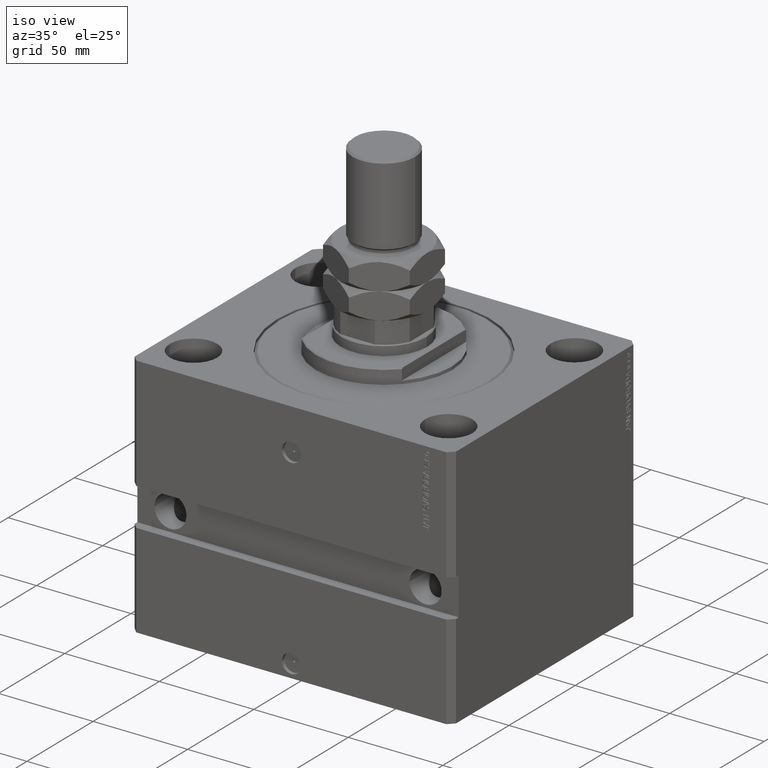
[diagram: clean part render]
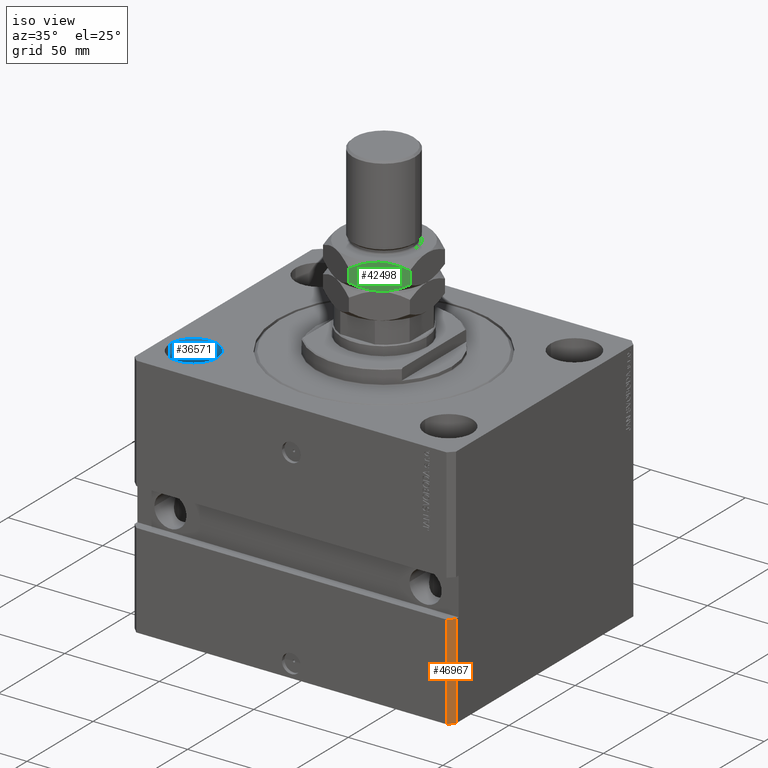
[diagram: same view with three faces highlighted in distinct colors, each labeled with its STEP entity id]
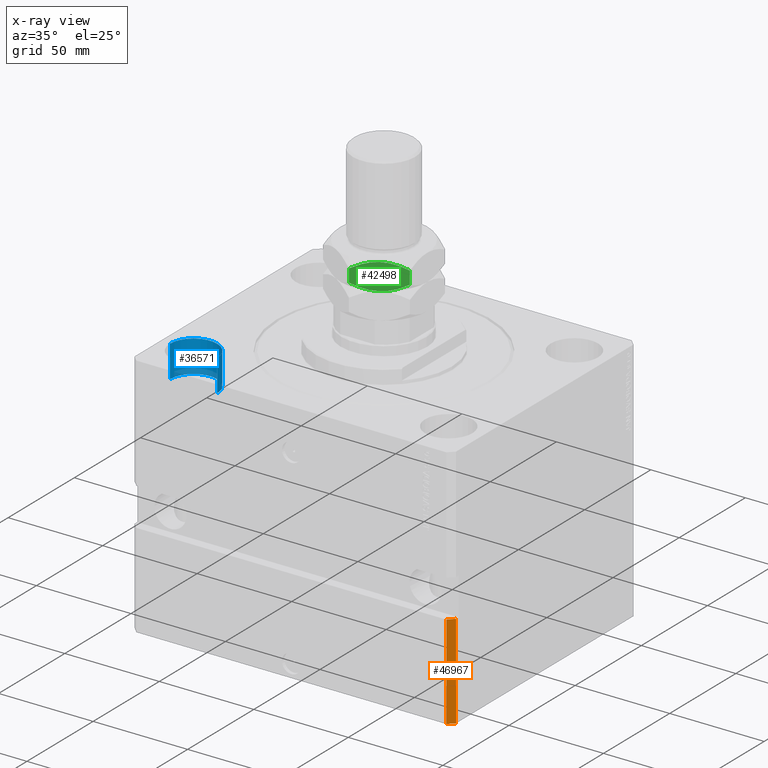
[diagram: x-ray of the same camera — body ghosted, the three highlighted faces saturated]
A machine part, iso view with three faces highlighted in distinct colors.
The next image is the same camera in x-ray (body ghosted, the three faces saturated) — at least one of them is partly hidden behind the body in this view.
Their STEP definitions:

[orange] entity #46967 — the highlighted planar face has unit normal (0.7071, -0.7071, 0).
#536 = ORIENTED_EDGE ( 'NONE', *, *, #32815, .F. ) ;
#2809 = LINE ( 'NONE', #28449, #19411 ) ;
#4522 = VERTEX_POINT ( 'NONE', #7290 ) ;
#5589 = LINE ( 'NONE', #31228, #29243 ) ;
#7290 = CARTESIAN_POINT ( 'NONE',  ( 85.00000000000001421, -66.99999999999998579, -80.00000000000001421 ) ) ;
#8044 = ORIENTED_EDGE ( 'NONE', *, *, #28532, .T. ) ;
#8510 = EDGE_LOOP ( 'NONE', ( #9921, #536, #27963, #8044 ) ) ;
#9921 = ORIENTED_EDGE ( 'NONE', *, *, #32874, .F. ) ;
#10393 = VERTEX_POINT ( 'NONE', #38588 ) ;
#10424 = CARTESIAN_POINT ( 'NONE',  ( 85.00000000000001421, -66.99999999999998579, -130.0000000000000000 ) ) ;
#12153 = DIRECTION ( 'NONE',  ( 0.7071067811865491270, -0.7071067811865459074, 0.000000000000000000 ) ) ;
#17192 = EDGE_CURVE ( 'NONE', #41017, #46832, #5589, .T. ) ;
#17438 = DIRECTION ( 'NONE',  ( 0.7071067811865459074, 0.7071067811865491270, 0.000000000000000000 ) ) ;
#19411 = VECTOR ( 'NONE', #17438, 1000.000000000000000 ) ;
#21381 = CARTESIAN_POINT ( 'NONE',  ( 82.00000000000001421, -70.00000000000000000, -130.0000000000000000 ) ) ;
#24320 = AXIS2_PLACEMENT_3D ( 'NONE', #41127, #12153, #40651 ) ;
#24857 = DIRECTION ( 'NONE',  ( 0.000000000000000000, 0.000000000000000000, 1.000000000000000000 ) ) ;
#24883 = CARTESIAN_POINT ( 'NONE',  ( 85.00000000000001421, -66.99999999999998579, -130.0000000000000000 ) ) ;
#25046 = DIRECTION ( 'NONE',  ( 0.000000000000000000, 0.000000000000000000, 1.000000000000000000 ) ) ;
#27819 = VECTOR ( 'NONE', #24857, 1000.000000000000000 ) ;
#27963 = ORIENTED_EDGE ( 'NONE', *, *, #17192, .T. ) ;
#28449 = CARTESIAN_POINT ( 'NONE',  ( 82.00000000000001421, -70.00000000000000000, -80.00000000000001421 ) ) ;
#28532 = EDGE_CURVE ( 'NONE', #46832, #4522, #46838, .T. ) ;
#28915 = LINE ( 'NONE', #32037, #27819 ) ;
#29243 = VECTOR ( 'NONE', #45827, 1000.000000000000000 ) ;
#31228 = CARTESIAN_POINT ( 'NONE',  ( 82.00000000000001421, -70.00000000000000000, -130.0000000000000000 ) ) ;
#31544 = VECTOR ( 'NONE', #25046, 1000.000000000000000 ) ;
#32037 = CARTESIAN_POINT ( 'NONE',  ( 82.00000000000001421, -70.00000000000000000, -130.0000000000000000 ) ) ;
#32815 = EDGE_CURVE ( 'NONE', #41017, #10393, #28915, .T. ) ;
#32874 = EDGE_CURVE ( 'NONE', #10393, #4522, #2809, .T. ) ;
#33704 = FACE_OUTER_BOUND ( 'NONE', #8510, .T. ) ;
#38588 = CARTESIAN_POINT ( 'NONE',  ( 82.00000000000001421, -69.99999999999998579, -80.00000000000001421 ) ) ;
#40651 = DIRECTION ( 'NONE',  ( 0.7071067811865459074, 0.7071067811865491270, 0.000000000000000000 ) ) ;
#41017 = VERTEX_POINT ( 'NONE', #21381 ) ;
#41127 = CARTESIAN_POINT ( 'NONE',  ( 82.00000000000001421, -70.00000000000000000, -130.0000000000000000 ) ) ;
#44964 = PLANE ( 'NONE',  #24320 ) ;
#45827 = DIRECTION ( 'NONE',  ( 0.7071067811865459074, 0.7071067811865491270, 0.000000000000000000 ) ) ;
#46832 = VERTEX_POINT ( 'NONE', #24883 ) ;
#46838 = LINE ( 'NONE', #10424, #31544 ) ;
#46967 = ADVANCED_FACE ( 'NONE', ( #33704 ), #44964, .T. ) ;

[blue] entity #36571 — the highlighted cylindrical surface (edge-blend (fillet) strip) has radius 12.5 mm, axis along (0, 0, 1).
#1251 = VERTEX_POINT ( 'NONE', #17324 ) ;
#1873 = VERTEX_POINT ( 'NONE', #21745 ) ;
#2598 = CARTESIAN_POINT ( 'NONE',  ( -67.50000000000000000, -47.50000000000000000, 0.000000000000000000 ) ) ;
#4026 = EDGE_LOOP ( 'NONE', ( #34848, #25272, #43698, #11450 ) ) ;
#4835 = EDGE_CURVE ( 'NONE', #1251, #41098, #28191, .T. ) ;
#4892 = EDGE_CURVE ( 'NONE', #41098, #36389, #22205, .T. ) ;
#7119 = CIRCLE ( 'NONE', #13254, 12.49999999999999645 ) ;
#8400 = CARTESIAN_POINT ( 'NONE',  ( -80.00000000000000000, -47.50000000000000000, -17.00000000000000000 ) ) ;
#10143 = CARTESIAN_POINT ( 'NONE',  ( -80.00000000000000000, -47.50000000000000000, 0.000000000000000000 ) ) ;
#10232 = AXIS2_PLACEMENT_3D ( 'NONE', #12503, #27349, #26879 ) ;
#11450 = ORIENTED_EDGE ( 'NONE', *, *, #34959, .T. ) ;
#12503 = CARTESIAN_POINT ( 'NONE',  ( -67.50000000000000000, -47.50000000000000000, -17.00000000000000000 ) ) ;
#13254 = AXIS2_PLACEMENT_3D ( 'NONE', #2598, #24876, #43305 ) ;
#17324 = CARTESIAN_POINT ( 'NONE',  ( -55.00000000000000711, -47.50000000000000000, -17.00000000000000000 ) ) ;
#21745 = CARTESIAN_POINT ( 'NONE',  ( -55.00000000000000711, -47.50000000000000000, 0.000000000000000000 ) ) ;
#22205 = LINE ( 'NONE', #25802, #35085 ) ;
#23291 = CYLINDRICAL_SURFACE ( 'NONE', #10232, 12.49999999999999645 ) ;
#24060 = VECTOR ( 'NONE', #34954, 1000.000000000000000 ) ;
#24876 = DIRECTION ( 'NONE',  ( 0.000000000000000000, 0.000000000000000000, 1.000000000000000000 ) ) ;
#25272 = ORIENTED_EDGE ( 'NONE', *, *, #4835, .F. ) ;
#25802 = CARTESIAN_POINT ( 'NONE',  ( -80.00000000000000000, -47.50000000000000000, -17.00000000000000000 ) ) ;
#26879 = DIRECTION ( 'NONE',  ( 1.000000000000000000, 0.000000000000000000, 0.000000000000000000 ) ) ;
#27095 = DIRECTION ( 'NONE',  ( 1.000000000000000000, 0.000000000000000000, 0.000000000000000000 ) ) ;
#27349 = DIRECTION ( 'NONE',  ( -0.000000000000000000, -0.000000000000000000, 1.000000000000000000 ) ) ;
#28191 = CIRCLE ( 'NONE', #46550, 12.49999999999999645 ) ;
#30691 = CARTESIAN_POINT ( 'NONE',  ( -67.50000000000000000, -47.50000000000000000, -17.00000000000000000 ) ) ;
#30930 = DIRECTION ( 'NONE',  ( 0.000000000000000000, 0.000000000000000000, 1.000000000000000000 ) ) ;
#34848 = ORIENTED_EDGE ( 'NONE', *, *, #4892, .F. ) ;
#34954 = DIRECTION ( 'NONE',  ( -0.000000000000000000, -0.000000000000000000, 1.000000000000000000 ) ) ;
#34959 = EDGE_CURVE ( 'NONE', #1873, #36389, #7119, .T. ) ;
#35085 = VECTOR ( 'NONE', #46240, 1000.000000000000000 ) ;
#36389 = VERTEX_POINT ( 'NONE', #10143 ) ;
#36571 = ADVANCED_FACE ( 'NONE', ( #41484 ), #23291, .F. ) ;
#37710 = EDGE_CURVE ( 'NONE', #1251, #1873, #41904, .T. ) ;
#38547 = CARTESIAN_POINT ( 'NONE',  ( -55.00000000000000711, -47.50000000000000000, -17.00000000000000000 ) ) ;
#41098 = VERTEX_POINT ( 'NONE', #8400 ) ;
#41484 = FACE_OUTER_BOUND ( 'NONE', #4026, .T. ) ;
#41904 = LINE ( 'NONE', #38547, #24060 ) ;
#43305 = DIRECTION ( 'NONE',  ( 1.000000000000000000, 0.000000000000000000, 0.000000000000000000 ) ) ;
#43698 = ORIENTED_EDGE ( 'NONE', *, *, #37710, .T. ) ;
#46240 = DIRECTION ( 'NONE',  ( -0.000000000000000000, -0.000000000000000000, 1.000000000000000000 ) ) ;
#46550 = AXIS2_PLACEMENT_3D ( 'NONE', #30691, #30930, #27095 ) ;

[green] entity #42498 — the highlighted planar face has unit normal (-0.5, 0.866, 0).
#16 = CARTESIAN_POINT ( 'NONE',  ( 18.37513248879265859, -15.94922469392329845, 26.69215624893394789 ) ) ;
#658 = CARTESIAN_POINT ( 'NONE',  ( 23.00000000000000000, -13.27905619136138782, 17.55811238272277564 ) ) ;
#965 = VERTEX_POINT ( 'NONE', #11112 ) ;
#1131 = ORIENTED_EDGE ( 'NONE', *, *, #10296, .T. ) ;
#2305 = CARTESIAN_POINT ( 'NONE',  ( 9.499688913091178577, -21.07346443153189242, 14.00000000000001243 ) ) ;
#2662 = CARTESIAN_POINT ( 'NONE',  ( 11.50000000000000533, -19.91858428704207995, 28.00000000000000000 ) ) ;
#3827 = CARTESIAN_POINT ( 'NONE',  ( 22.09936078620807010, -13.79904048388689297, 24.96187190980275616 ) ) ;
#4061 = CARTESIAN_POINT ( 'NONE',  ( 11.50000000000000533, -19.91858428704207995, 28.00000000000000000 ) ) ;
#5591 = CARTESIAN_POINT ( 'NONE',  ( 11.50000000000000533, -19.91858428704207995, 28.00000000000000000 ) ) ;
#6022 = CARTESIAN_POINT ( 'NONE',  ( 13.52432111410264426, -18.74984194688869721, 14.11109877778790711 ) ) ;
#6354 = CARTESIAN_POINT ( 'NONE',  ( 3.676134192524337152, -24.43569531709167819, 15.69106848873859761 ) ) ;
#6844 = B_SPLINE_CURVE_WITH_KNOTS ( 'NONE', 3,
 ( #41955, #20169, #20398, #16813, #13212, #27824, #38823, #32127, #13699, #2662 ),
 .UNSPECIFIED., .F., .F.,
 ( 4, 2, 2, 2, 4 ),
 ( 2.544306848906980008E-07, 0.006882727124393995914, 0.01032396347124855084, 0.01204458164467583220, 0.01376519981810311356 ),
 .UNSPECIFIED. ) ;
#7272 = EDGE_CURVE ( 'NONE', #965, #14093, #28965, .T. ) ;
#8252 = CARTESIAN_POINT ( 'NONE',  ( 23.00000000000000000, -13.27905619136138959, 24.44188761727722792 ) ) ;
#9501 = DIRECTION ( 'NONE',  ( -0.8660254037844383745, -0.5000000000000003331, 0.000000000000000000 ) ) ;
#10296 = EDGE_CURVE ( 'NONE', #24319, #14093, #30939, .T. ) ;
#10425 = CARTESIAN_POINT ( 'NONE',  ( 1.709722276742338234E-15, -26.55811238272278985, 17.55811238272278274 ) ) ;
#10558 = CARTESIAN_POINT ( 'NONE',  ( 21.18561130058603581, -14.32659399538265355, 25.44392212070775727 ) ) ;
#11112 = CARTESIAN_POINT ( 'NONE',  ( 11.49999999999998934, -19.91858428704209061, 14.00000000000000000 ) ) ;
#13212 = CARTESIAN_POINT ( 'NONE',  ( 7.485235315951460855, -22.23650975811052533, 27.56483616389683888 ) ) ;
#13324 = CARTESIAN_POINT ( 'NONE',  ( 0.9006392137919316809, -26.03812809019729357, 17.03812809019724028 ) ) ;
#13347 = DIRECTION ( 'NONE',  ( -0.5000000000000004441, 0.8660254037844384856, 0.000000000000000000 ) ) ;
#13467 = CARTESIAN_POINT ( 'NONE',  ( 15.51476468404853826, -17.60065881597365944, 14.43516383610315756 ) ) ;
#13699 = CARTESIAN_POINT ( 'NONE',  ( 10.99639501427890309, -20.20934076111341327, 28.00000000000000355 ) ) ;
#13711 = CARTESIAN_POINT ( 'NONE',  ( 12.51003418050900073, -19.33544078103450303, 14.02214754275534681 ) ) ;
#14093 = VERTEX_POINT ( 'NONE', #36939 ) ;
#16697 = CARTESIAN_POINT ( 'NONE',  ( 3.419413258936889517E-15, -26.55811238272278985, 28.00000000000000000 ) ) ;
#16813 = CARTESIAN_POINT ( 'NONE',  ( 6.513252209336793719, -22.79768446636226642, 27.31372419864524659 ) ) ;
#17766 = CARTESIAN_POINT ( 'NONE',  ( 21.19663298550257480, -14.32023062262916824, 16.51693795145499877 ) ) ;
#19939 = B_SPLINE_CURVE_WITH_KNOTS ( 'NONE', 3,
 ( #4061, #21586, #46975, #16, #29698, #10558, #3827, #33055 ),
 .UNSPECIFIED., .F., .F.,
 ( 4, 2, 2, 4 ),
 ( 0.01376519981810311356, 0.02059946815584629345, 0.02401660232471788253, 0.02743373649358946814 ),
 .UNSPECIFIED. ) ;
#20169 = CARTESIAN_POINT ( 'NONE',  ( 1.803367014497427645, -25.51693795145501298, 25.48306204854499768 ) ) ;
#20398 = CARTESIAN_POINT ( 'NONE',  ( 3.647547518302292957, -24.45219984114902090, 26.36778857186889979 ) ) ;
#20746 = CARTESIAN_POINT ( 'NONE',  ( 11.49999999999998934, -19.91858428704209061, 14.00000000000000000 ) ) ;
#21357 = CARTESIAN_POINT ( 'NONE',  ( 12.00360498572110401, -19.62782781297077861, 14.00000000000000533 ) ) ;
#21586 = CARTESIAN_POINT ( 'NONE',  ( 13.50031108690882675, -18.76370414255229591, 28.00000000000000000 ) ) ;
#24319 = VERTEX_POINT ( 'NONE', #47289 ) ;
#25047 = CARTESIAN_POINT ( 'NONE',  ( 7.533391302902209041, -22.20870688608141919, 14.35317254909358908 ) ) ;
#25260 = ORIENTED_EDGE ( 'NONE', *, *, #45445, .F. ) ;
#26712 = B_SPLINE_CURVE_WITH_KNOTS ( 'NONE', 3,
 ( #42443, #17766, #28545, #32370, #13467, #39541, #6022, #13711, #21357, #35966 ),
 .UNSPECIFIED., .F., .F.,
 ( 4, 2, 2, 2, 4 ),
 ( 2.544306848934472580E-07, 0.006882727124394008057, 0.01032396347124856124, 0.01204458164467583740, 0.01376519981810311356 ),
 .UNSPECIFIED. ) ;
#27174 = DIRECTION ( 'NONE',  ( -0.000000000000000000, -0.000000000000000000, -1.000000000000000000 ) ) ;
#27338 = DIRECTION ( 'NONE',  ( -0.000000000000000000, -0.000000000000000000, -1.000000000000000000 ) ) ;
#27824 = CARTESIAN_POINT ( 'NONE',  ( 8.974191784962727070, -21.37686033991523615, 27.82274339568303390 ) ) ;
#28545 = CARTESIAN_POINT ( 'NONE',  ( 19.35245248169770349, -15.38496873293516742, 15.63221142813110376 ) ) ;
#28965 = B_SPLINE_CURVE_WITH_KNOTS ( 'NONE', 3,
 ( #20746, #2305, #25047, #42774, #6354, #42536, #13324, #10425 ),
 .UNSPECIFIED., .F., .F.,
 ( 4, 2, 2, 4 ),
 ( 0.01376519981810311356, 0.02059946815584628999, 0.02401660232471788253, 0.02743373649358947161 ),
 .UNSPECIFIED. ) ;
#29698 = CARTESIAN_POINT ( 'NONE',  ( 19.32386580747566285, -15.40147325699249770, 26.30893151126140594 ) ) ;
#30897 = VECTOR ( 'NONE', #27174, 1000.000000000000000 ) ;
#30939 = LINE ( 'NONE', #45533, #39733 ) ;
#30970 = VERTEX_POINT ( 'NONE', #5591 ) ;
#31060 = AXIS2_PLACEMENT_3D ( 'NONE', #16697, #13347, #9501 ) ;
#31241 = CARTESIAN_POINT ( 'NONE',  ( 23.00000000000000000, -13.27905619136138959, 28.00000000000000000 ) ) ;
#31254 = ORIENTED_EDGE ( 'NONE', *, *, #36316, .F. ) ;
#32127 = CARTESIAN_POINT ( 'NONE',  ( 10.48996581949100104, -20.50172779304968884, 27.97785245724466563 ) ) ;
#32370 = CARTESIAN_POINT ( 'NONE',  ( 16.48674779066320184, -17.03948410772191124, 14.68627580135475164 ) ) ;
#33055 = CARTESIAN_POINT ( 'NONE',  ( 23.00000000000000000, -13.27905619136138959, 24.44188761727722792 ) ) ;
#33539 = EDGE_LOOP ( 'NONE', ( #42793, #31254, #25260, #33902, #1131, #40074 ) ) ;
#33902 = ORIENTED_EDGE ( 'NONE', *, *, #35502, .F. ) ;
#34891 = PLANE ( 'NONE',  #31060 ) ;
#35502 = EDGE_CURVE ( 'NONE', #24319, #30970, #6844, .T. ) ;
#35966 = CARTESIAN_POINT ( 'NONE',  ( 11.49999999999998934, -19.91858428704209061, 14.00000000000000000 ) ) ;
#36316 = EDGE_CURVE ( 'NONE', #37402, #45971, #45136, .T. ) ;
#36939 = CARTESIAN_POINT ( 'NONE',  ( 1.709722276742338234E-15, -26.55811238272278985, 17.55811238272278274 ) ) ;
#37402 = VERTEX_POINT ( 'NONE', #8252 ) ;
#38823 = CARTESIAN_POINT ( 'NONE',  ( 9.475678885897357517, -21.08732662719549467, 27.88890122221209467 ) ) ;
#39541 = CARTESIAN_POINT ( 'NONE',  ( 14.02580821503727471, -18.46030823416895217, 14.17725660431697676 ) ) ;
#39733 = VECTOR ( 'NONE', #27338, 1000.000000000000000 ) ;
#40074 = ORIENTED_EDGE ( 'NONE', *, *, #7272, .F. ) ;
#41955 = CARTESIAN_POINT ( 'NONE',  ( -1.934533906329143444E-16, -26.55811238272279340, 24.44188761727721726 ) ) ;
#42443 = CARTESIAN_POINT ( 'NONE',  ( 23.00000000000000000, -13.27905619136138782, 17.55811238272277564 ) ) ;
#42498 = ADVANCED_FACE ( 'NONE', ( #46148 ), #34891, .F. ) ;
#42536 = CARTESIAN_POINT ( 'NONE',  ( 1.814388699413966410, -25.51057457870152589, 16.55607787929225339 ) ) ;
#42774 = CARTESIAN_POINT ( 'NONE',  ( 4.624867511207329862, -23.88794388016088632, 15.30784375106604855 ) ) ;
#42793 = ORIENTED_EDGE ( 'NONE', *, *, #46192, .F. ) ;
#45136 = LINE ( 'NONE', #31241, #30897 ) ;
#45445 = EDGE_CURVE ( 'NONE', #30970, #37402, #19939, .T. ) ;
#45533 = CARTESIAN_POINT ( 'NONE',  ( 3.419413258936889517E-15, -26.55811238272278985, 28.00000000000000000 ) ) ;
#45971 = VERTEX_POINT ( 'NONE', #658 ) ;
#46148 = FACE_OUTER_BOUND ( 'NONE', #33539, .T. ) ;
#46192 = EDGE_CURVE ( 'NONE', #45971, #965, #26712, .T. ) ;
#46975 = CARTESIAN_POINT ( 'NONE',  ( 15.46660869709778119, -17.62846168800276558, 27.64682745090641447 ) ) ;
#47289 = CARTESIAN_POINT ( 'NONE',  ( -1.934533906329143444E-16, -26.55811238272279340, 24.44188761727721726 ) ) ;